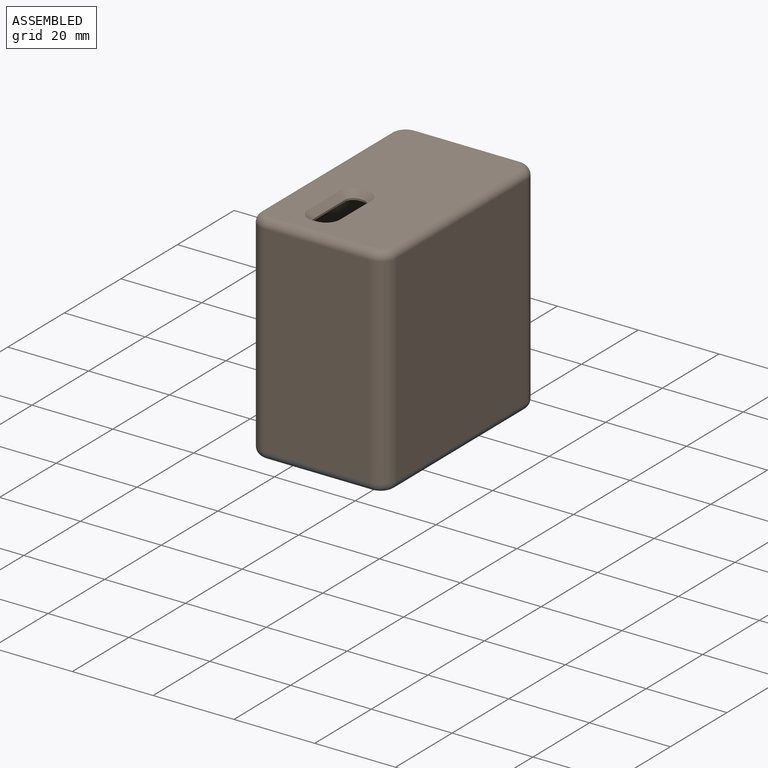
[diagram: assembled view]
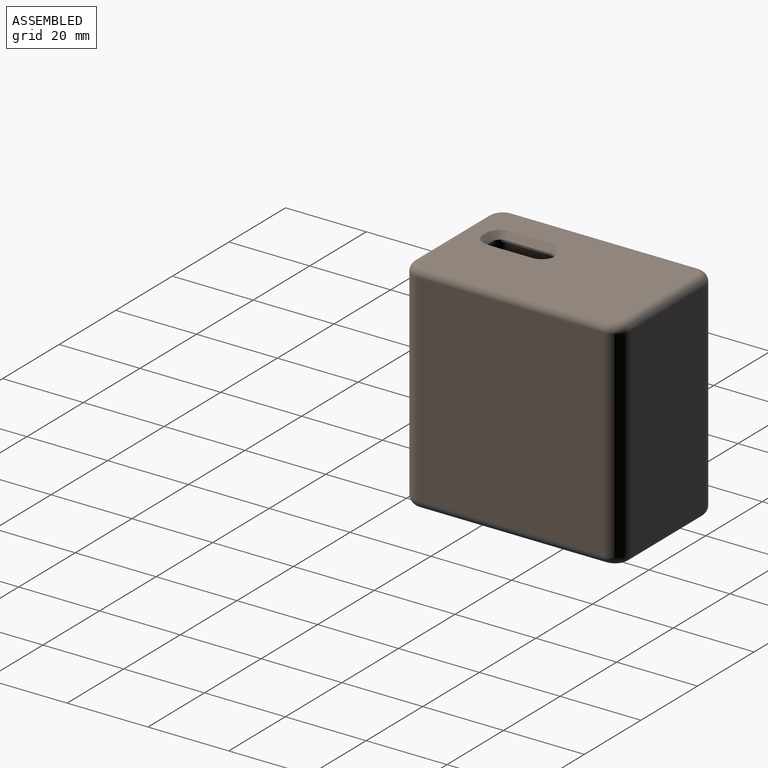
[diagram: assembled view, second angle]
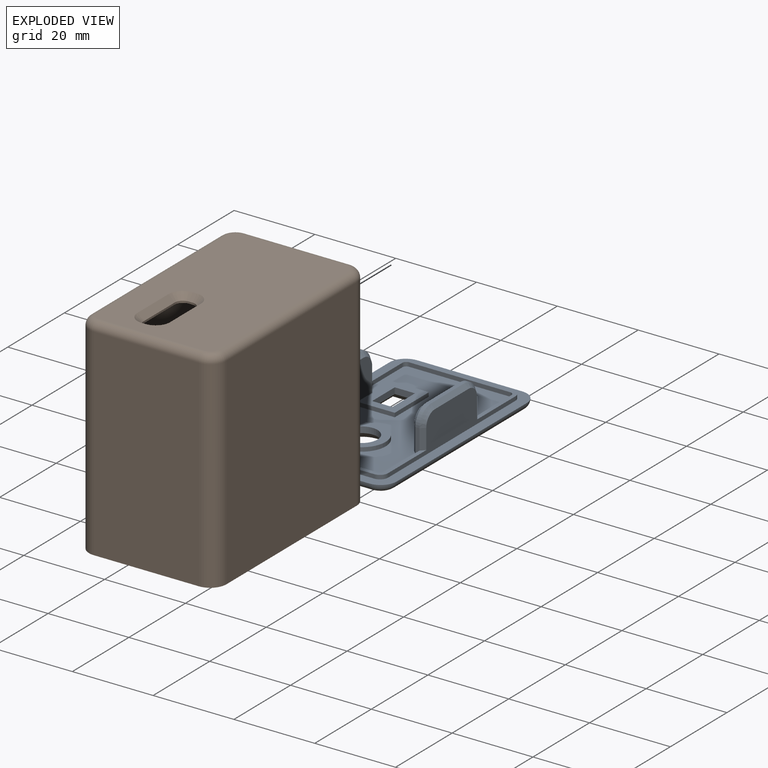
[diagram: exploded view]
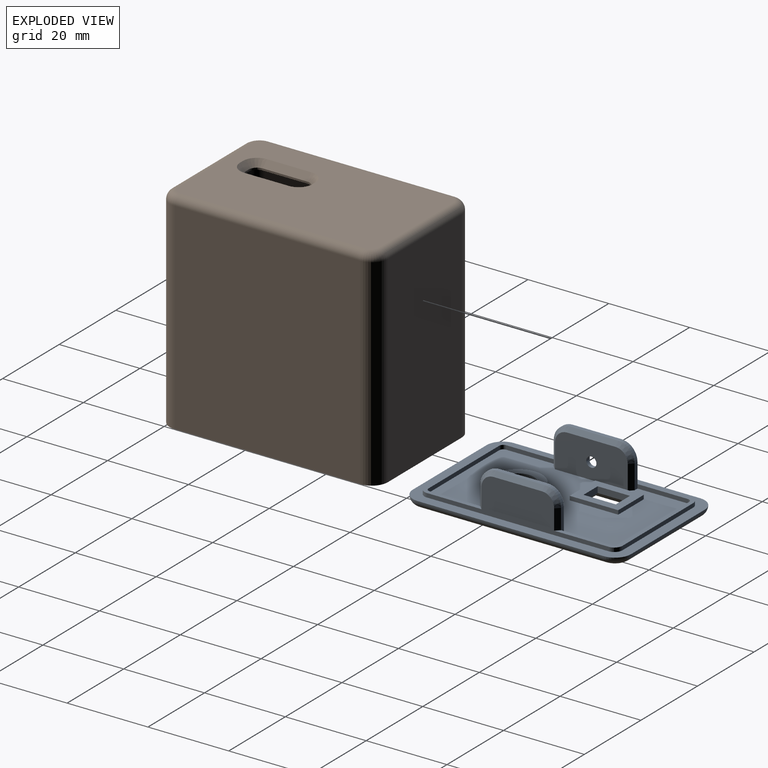
[diagram: exploded view, second angle]
ASSEMBLY  parts=2 mates=2
PART A: 86 faces, bbox 34.7x54.7x12 mm
  f0: plane 47x27mm, normal (0,0,1), area 969mm2, adj f4,f5,f6,f9,f10,f11,f41,f45
  f1: plane 54x34mm, normal (0,0,1), area 404.7mm2, adj f2,f8,f28,f29,f30,f31,f32,f33
  f2: plane 45x9mm, normal (-1,0,0), area 160.1mm2, adj f1,f19,f20,f21,f22,f56,f57,f58
  f3: plane 50x30mm, normal (0,0,-1), area 1313.5mm2, adj f28,f29,f30,f31,f32,f33,f34,f35
  f4: plane 6x1mm, normal (0,1,0), area 6mm2, adj f0,f27,f50,f60,f69
  f5: plane 6x1mm, normal (0,-1,0), area 6mm2, adj f0,f26,f46,f56,f66
  f6: plane 18x9mm, normal (1,0,0), area 153.2mm2, adj f0,f23,f46,f47,f48,f49,f50
  f7: plane 12x1mm, normal (0,0,1), area 12mm2, adj f26,f27,f48,f58
  f8: plane 45x9mm, normal (1,0,0), area 185.1mm2, adj f1,f51,f52,f53,f54,f55,f67,f72
  f9: plane 6x1mm, normal (0,1,0), area 6mm2, adj f0,f24,f45,f55,f71
  f10: plane 18x9mm, normal (-1,0,0), area 158.1mm2, adj f0,f41,f42,f43,f44,f45
  f11: plane 6x1mm, normal (0,-1,0), area 6mm2, adj f0,f25,f41,f51,f64
  f12: plane 12x1mm, normal (0,0,1), area 12mm2, adj f24,f25,f43,f53
  f13: plane 8x1.5mm, normal (-1,0,0), area 12mm2, adj f14,f16,f36,f85
  f14: plane 5x1.5mm, normal (0,-1,0), area 7.5mm2, adj f13,f15,f37,f85
  f15: plane 8x1.5mm, normal (1,0,0), area 12mm2, adj f14,f16,f39,f85
  f16: plane 5x1.5mm, normal (0,1,0), area 7.5mm2, adj f13,f15,f38,f85
  f17: cylinder r=4mm len=8mm, axis (0,0,1), area 37.7mm2, adj f40,f62
  f18: plane 5x5mm, normal (-1,0,0), area 20.1mm2, adj f19,f20,f21,f22,f23
  f19: plane 5x2mm, normal (0,1,0), area 10mm2, adj f2,f18,f20,f22
  f20: plane 5x2mm, normal (0,0,-1), area 10mm2, adj f2,f18,f19,f21
  f21: plane 5x2mm, normal (0,-1,0), area 10mm2, adj f2,f18,f20,f22
  f22: plane 5x2mm, normal (0,0,1), area 10mm2, adj f2,f18,f19,f21
  f23: cylinder r=1.25mm len=2.5mm, axis (-1,0,0), area 7.9mm2, adj f6,f18
  f24: cylinder r=4mm len=4mm, axis (1,0,0), area 6.3mm2, adj f9,f12,f44,f54
  f25: cylinder r=4mm len=4mm, axis (-1,0,0), area 6.3mm2, adj f11,f12,f42,f52
  f26: cylinder r=4mm len=4mm, axis (-1,0,0), area 6.3mm2, adj f5,f7,f47,f57
  f27: cylinder r=4mm len=4mm, axis (1,0,0), area 6.3mm2, adj f4,f7,f49,f59
  f28: cylinder r=2mm len=46mm, axis (0,-1,0), area 144.5mm2, adj f1,f3,f29,f30
  f29: torus R=2mm, axis (0,0,1), area 16.2mm2, adj f1,f3,f28,f31
  f30: torus R=2mm, axis (0,0,1), area 16.2mm2, adj f1,f3,f28,f32
  f31: cylinder r=2mm len=26mm, axis (-1,0,0), area 81.7mm2, adj f1,f3,f29,f33
  f32: cylinder r=2mm len=26mm, axis (1,0,0), area 81.7mm2, adj f1,f3,f30,f34
  f33: torus R=2mm, axis (0,0,1), area 16.2mm2, adj f1,f3,f31,f35
  f34: torus R=2mm, axis (0,0,1), area 16.2mm2, adj f1,f3,f32,f35
  f35: cylinder r=2mm len=46mm, axis (0,1,0), area 144.5mm2, adj f1,f3,f33,f34
  f36: plane 11x1.5mm, normal (-0.71,0,-0.71), area 20.2mm2, adj f3,f13,f37,f38
  f37: plane 8x1.5mm, normal (0,-0.71,-0.71), area 13.8mm2, adj f3,f14,f36,f39
  f38: plane 8x1.5mm, normal (0,0.71,-0.71), area 13.8mm2, adj f3,f16,f36,f39
  f39: plane 11x1.5mm, normal (0.71,0,-0.71), area 20.2mm2, adj f3,f15,f37,f38
  f40: cone r=5.5mm half-angle=45deg, axis (0,0,-1), area 63.3mm2, adj f3,f17
  f41: plane 6x1mm, normal (-0.71,-0.71,0), area 8.5mm2, adj f0,f10,f11,f42
  f42: cone r=3mm half-angle=45deg, axis (1,0,0), area 7.8mm2, adj f10,f25,f41,f43
  f43: plane 12x1mm, normal (-0.71,0,0.71), area 17mm2, adj f10,f12,f42,f44
  f44: cone r=3mm half-angle=45deg, axis (1,0,0), area 7.8mm2, adj f10,f24,f43,f45
  f45: plane 6x1mm, normal (-0.71,0.71,0), area 8.5mm2, adj f0,f9,f10,f44
  f46: plane 6x1mm, normal (0.71,-0.71,0), area 8.5mm2, adj f0,f5,f6,f47
  f47: cone r=3mm half-angle=45deg, axis (-1,0,0), area 7.8mm2, adj f6,f26,f46,f48
  f48: plane 12x1mm, normal (0.71,0,0.71), area 17mm2, adj f6,f7,f47,f49
  f49: cone r=3mm half-angle=45deg, axis (-1,0,0), area 7.8mm2, adj f6,f27,f48,f50
  f50: plane 6x1mm, normal (0.71,0.71,0), area 8.5mm2, adj f0,f4,f6,f49
  f51: plane 5x1mm, normal (0.71,-0.71,0), area 7.1mm2, adj f8,f11,f52,f67
  f52: cone r=3mm half-angle=45deg, axis (-1,0,0), area 7.8mm2, adj f8,f25,f51,f53
  f53: plane 12x1mm, normal (0.71,0,0.71), area 17mm2, adj f8,f12,f52,f54
  f54: cone r=3mm half-angle=45deg, axis (-1,0,0), area 7.8mm2, adj f8,f24,f53,f55
  f55: plane 5x1mm, normal (0.71,0.71,0), area 7.1mm2, adj f8,f9,f54,f72
  f56: plane 5x1mm, normal (-0.71,-0.71,0), area 7.1mm2, adj f2,f5,f57,f67
  f57: cone r=3mm half-angle=45deg, axis (1,0,0), area 7.8mm2, adj f2,f26,f56,f58
  f58: plane 12x1mm, normal (-0.71,0,0.71), area 17mm2, adj f2,f7,f57,f59
  f59: cone r=3mm half-angle=45deg, axis (1,0,0), area 7.8mm2, adj f2,f27,f58,f60
  f60: plane 5x1mm, normal (-0.71,0.71,0), area 7.1mm2, adj f2,f4,f59,f72
  f61: cylinder r=6mm len=12mm, axis (0,0,-1), area 37.7mm2, adj f0,f62
  f62: plane 12x12mm, normal (0,0,1), area 62.8mm2, adj f17,f61
  f63: plane 25x1mm, normal (0,-1,0), area 25mm2, adj f1,f67,f77,f78
  f64: plane 12.5x1mm, normal (-1,0,0), area 12.5mm2, adj f0,f11,f67,f73
  f65: plane 25x1mm, normal (0,1,0), area 25mm2, adj f0,f67,f73,f74
  f66: plane 12.5x1mm, normal (1,0,0), area 12.5mm2, adj f0,f5,f67,f74
  f67: plane 29x15.5mm, normal (0,0,1), area 55.7mm2, adj f2,f8,f51,f56,f63,f64,f65,f66
  f68: plane 25x1mm, normal (0,1,0), area 25mm2, adj f1,f72,f79,f80
  f69: plane 12.5x1mm, normal (1,0,0), area 12.5mm2, adj f0,f4,f72,f76
  f70: plane 25x1mm, normal (0,-1,0), area 25mm2, adj f0,f72,f75,f76
  f71: plane 12.5x1mm, normal (-1,0,0), area 12.5mm2, adj f0,f9,f72,f75
  f72: plane 29x15.5mm, normal (0,0,1), area 55.7mm2, adj f2,f8,f55,f60,f68,f69,f70,f71
  f73: cylinder r=1mm len=1mm, axis (0,0,-1), area 1.6mm2, adj f0,f64,f65,f67
  f74: cylinder r=1mm len=1mm, axis (0,0,1), area 1.6mm2, adj f0,f65,f66,f67
  f75: cylinder r=1mm len=1mm, axis (0,0,1), area 1.6mm2, adj f0,f70,f71,f72
  f76: cylinder r=1mm len=1mm, axis (0,0,-1), area 1.6mm2, adj f0,f69,f70,f72
  f77: cylinder r=2mm len=2mm, axis (0,0,-1), area 3.1mm2, adj f1,f8,f63,f67
  f78: cylinder r=2mm len=2mm, axis (0,0,1), area 3.1mm2, adj f1,f2,f63,f67
  f79: cylinder r=2mm len=2mm, axis (0,0,-1), area 3.1mm2, adj f1,f2,f68,f72
  f80: cylinder r=2mm len=2mm, axis (0,0,1), area 3.1mm2, adj f1,f8,f68,f72
  f81: plane 12x1mm, normal (1,0,0), area 12mm2, adj f0,f82,f84,f85
  f82: plane 9x1mm, normal (0,1,0), area 9mm2, adj f0,f81,f83,f85
  f83: plane 12x1mm, normal (-1,0,0), area 12mm2, adj f0,f82,f84,f85
  f84: plane 9x1mm, normal (0,-1,0), area 9mm2, adj f0,f81,f83,f85
  f85: plane 12x9mm, normal (0,0,1), area 68mm2, adj f13,f14,f15,f16,f81,f82,f83,f84
PART B: 82 faces, bbox 34.7x54.7x52 mm
  f0: cylinder r=1.25mm len=2.5mm, axis (-1,0,0), area 7.9mm2, adj f10,f30
  f1: plane 50x26mm, normal (0,0,1), area 1135.3mm2, adj f3,f4,f14,f16,f22,f25,f26,f27
  f2: plane 50x30mm, normal (0,0,-1), area 1363.1mm2, adj f66,f67,f68,f69,f70,f71,f72,f73
  f3: plane 50x26mm, normal (0,-1,0), area 981.7mm2, adj f1,f11,f19,f20,f22,f23,f25,f36
  f4: plane 50x26mm, normal (0,1,0), area 981.7mm2, adj f1,f11,f12,f14,f15,f16,f18,f41
  f5: plane 50x26mm, normal (0,-1,0), area 1300mm2, adj f11,f32,f35,f81
  f6: plane 50x46mm, normal (1,0,0), area 2300mm2, adj f11,f32,f33,f77
  f7: plane 50x26mm, normal (0,1,0), area 1300mm2, adj f11,f33,f34,f74
  f8: plane 50x46mm, normal (-1,0,0), area 2276.2mm2, adj f11,f31,f34,f35,f78
  f9: plane 48x46mm, normal (-1,0,0), area 1980mm2, adj f11,f12,f23,f47,f50,f53,f57,f61
  f10: plane 48x46mm, normal (1,0,0), area 2203.1mm2, adj f0,f11,f58,f59,f60
  f11: plane 54x34mm, normal (0,0,1), area 325.7mm2, adj f3,f4,f5,f6,f7,f8,f9,f10
  f12: plane 5x3mm, normal (0,0,1), area 9mm2, adj f4,f9,f13,f47,f56,f57
  f13: plane 38x3mm, normal (0,1,0), area 113.1mm2, adj f12,f14,f47,f48,f56
  f14: plane 38x5mm, normal (-1,0,0), area 114.9mm2, adj f1,f4,f13,f48,f56
  f15: plane 3x1mm, normal (0,0,1), area 3mm2, adj f4,f17,f41,f55
  f16: plane 38x5mm, normal (1,0,0), area 114.9mm2, adj f1,f4,f17,f45,f55
  f17: plane 38x3mm, normal (0,1,0), area 113.1mm2, adj f15,f16,f42,f45,f55
  f18: plane 36x1mm, normal (-1,0,0), area 36mm2, adj f4,f41,f42,f43
  f19: plane 3x1mm, normal (0,0,1), area 3mm2, adj f3,f21,f36,f54
  f20: plane 36x1mm, normal (-1,0,0), area 36mm2, adj f3,f36,f37,f38
  f21: plane 38x3mm, normal (0,-1,0), area 113.1mm2, adj f19,f22,f38,f40,f54
  f22: plane 38x5mm, normal (1,0,0), area 114.9mm2, adj f1,f3,f21,f40,f54
  f23: plane 5x3mm, normal (0,0,1), area 9mm2, adj f3,f9,f24,f46,f53,f61
  f24: plane 38x3mm, normal (0,-1,0), area 113.1mm2, adj f23,f25,f46,f51,f53
  f25: plane 38x5mm, normal (-1,0,0), area 114.9mm2, adj f1,f3,f24,f46,f51
  f26: plane 11x0.5mm, normal (1,0,0), area 5.5mm2, adj f1,f62,f64,f73
  f27: plane 1x0.5mm, normal (0,-1,0), area 0.5mm2, adj f1,f62,f63,f69
  f28: plane 11x0.5mm, normal (-1,0,0), area 5.5mm2, adj f1,f63,f65,f66
  f29: plane 1x0.5mm, normal (0,1,0), area 0.5mm2, adj f1,f64,f65,f70
  f30: plane 5.5x5.5mm, normal (-1,0,0), area 18.8mm2, adj f0,f31
  f31: cylinder r=2.75mm len=5.5mm, axis (-1,0,0), area 17.3mm2, adj f8,f30
  f32: cylinder r=4mm len=50mm, axis (0,0,-1), area 314.2mm2, adj f5,f6,f11,f79
  f33: cylinder r=4mm len=50mm, axis (0,0,1), area 314.2mm2, adj f6,f7,f11,f75
  f34: cylinder r=4mm len=50mm, axis (0,0,-1), area 314.2mm2, adj f7,f8,f11,f76
  f35: cylinder r=4mm len=50mm, axis (0,0,1), area 314.2mm2, adj f5,f8,f11,f80
  f36: cylinder r=2mm len=3mm, axis (0,1,0), area 7.1mm2, adj f3,f19,f20,f38
  f37: cylinder r=2mm len=2mm, axis (0,-1,0), area 3.1mm2, adj f1,f3,f20,f39
  f38: cylinder r=2mm len=38mm, axis (0,0,1), area 117.1mm2, adj f20,f21,f36,f39
  f39: torus R=4mm, axis (0,0,1), area 13.5mm2, adj f1,f37,f38,f40
  f40: cylinder r=2mm len=3mm, axis (1,0,0), area 9.4mm2, adj f1,f21,f22,f39
  f41: cylinder r=2mm len=3mm, axis (0,1,0), area 7.1mm2, adj f4,f15,f18,f42
  f42: cylinder r=2mm len=38mm, axis (0,0,1), area 117.1mm2, adj f17,f18,f41,f44
  f43: cylinder r=2mm len=2mm, axis (0,-1,0), area 3.1mm2, adj f1,f4,f18,f44
  f44: torus R=4mm, axis (0,0,1), area 13.5mm2, adj f1,f42,f43,f45
  f45: cylinder r=2mm len=3mm, axis (-1,0,0), area 9.4mm2, adj f1,f16,f17,f44
  f46: cylinder r=2mm len=3mm, axis (0,1,0), area 9.4mm2, adj f3,f23,f24,f25
  f47: cylinder r=2mm len=38mm, axis (0,0,-1), area 119.4mm2, adj f9,f12,f13,f49
  f48: cylinder r=2mm len=3mm, axis (-1,0,0), area 9.4mm2, adj f1,f13,f14,f49
  f49: sphere r=2mm, area 6.3mm2, adj f47,f48,f50
  f50: cylinder r=2mm len=40mm, axis (0,-1,0), area 125.7mm2, adj f1,f9,f49,f52
  f51: cylinder r=2mm len=3mm, axis (1,0,0), area 9.4mm2, adj f1,f24,f25,f52
  f52: sphere r=2mm, area 6.3mm2, adj f50,f51,f53
  f53: cylinder r=2mm len=38mm, axis (0,0,1), area 119.4mm2, adj f9,f23,f24,f52
  f54: cylinder r=2mm len=3mm, axis (0,-1,0), area 9.4mm2, adj f3,f19,f21,f22
  f55: cylinder r=2mm len=3mm, axis (0,-1,0), area 9.4mm2, adj f4,f15,f16,f17
  f56: cylinder r=2mm len=3mm, axis (0,1,0), area 9.4mm2, adj f4,f12,f13,f14
  f57: cylinder r=2mm len=10mm, axis (0,0,-1), area 31.4mm2, adj f4,f9,f11,f12
  f58: cylinder r=2mm len=50mm, axis (0,0,-1), area 154.8mm2, adj f3,f10,f11,f59
  f59: cylinder r=2mm len=50mm, axis (0,1,0), area 152.5mm2, adj f1,f10,f58,f60
  f60: cylinder r=2mm len=50mm, axis (0,0,1), area 154.8mm2, adj f4,f10,f11,f59
  f61: cylinder r=2mm len=10mm, axis (0,0,1), area 31.4mm2, adj f3,f9,f11,f23
  f62: cylinder r=2mm len=2mm, axis (0,0,-1), area 1.6mm2, adj f1,f26,f27,f71
  f63: cylinder r=2mm len=2mm, axis (0,0,1), area 1.6mm2, adj f1,f27,f28,f67
  f64: cylinder r=2mm len=2mm, axis (0,0,1), area 1.6mm2, adj f1,f26,f29,f72
  f65: cylinder r=2mm len=2mm, axis (0,0,-1), area 1.6mm2, adj f1,f28,f29,f68
  f66: plane 11x1.5mm, normal (-0.71,0,-0.71), area 23.3mm2, adj f2,f28,f67,f68
  f67: cone r=3.5mm half-angle=45deg, axis (0,0,-1), area 9.2mm2, adj f2,f63,f66,f69
  f68: cone r=3.5mm half-angle=45deg, axis (0,0,-1), area 9.2mm2, adj f2,f65,f66,f70
  f69: plane 1.5x1.5mm, normal (0,-0.71,-0.71), area 2.1mm2, adj f2,f27,f67,f71
  f70: plane 1.5x1.5mm, normal (0,0.71,-0.71), area 2.1mm2, adj f2,f29,f68,f72
  f71: cone r=3.5mm half-angle=45deg, axis (0,0,-1), area 9.2mm2, adj f2,f62,f69,f73
  f72: cone r=3.5mm half-angle=45deg, axis (0,0,-1), area 9.2mm2, adj f2,f64,f70,f73
  f73: plane 11x1.5mm, normal (0.71,0,-0.71), area 23.3mm2, adj f2,f26,f71,f72
  f74: cylinder r=2mm len=26mm, axis (1,0,0), area 81.7mm2, adj f2,f7,f75,f76
  f75: torus R=2mm, axis (0,0,1), area 16.2mm2, adj f2,f33,f74,f77
  f76: torus R=2mm, axis (0,0,1), area 16.2mm2, adj f2,f34,f74,f78
  f77: cylinder r=2mm len=46mm, axis (0,-1,0), area 144.5mm2, adj f2,f6,f75,f79
  f78: cylinder r=2mm len=46mm, axis (0,1,0), area 144.5mm2, adj f2,f8,f76,f80
  f79: torus R=2mm, axis (0,0,1), area 16.2mm2, adj f2,f32,f77,f81
  f80: torus R=2mm, axis (0,0,1), area 16.2mm2, adj f2,f35,f78,f81
  f81: cylinder r=2mm len=26mm, axis (-1,0,0), area 81.7mm2, adj f2,f5,f79,f80
PLACE A t=(28.6,-10.3,-20.49)mm
PLACE B rot(axis=(1,0,0),180deg) t=(28.6,-10.3,29.51)mm fixed
MATE cylindrical B.f0 <-> A.f23  axis (-1,0,0) through (13.1,-10.3,-16.49)mm
MATE parallel B.f11 <-> A.f0  axis (0,0,-1) through (28.6,-10.3,-20.49)mm
